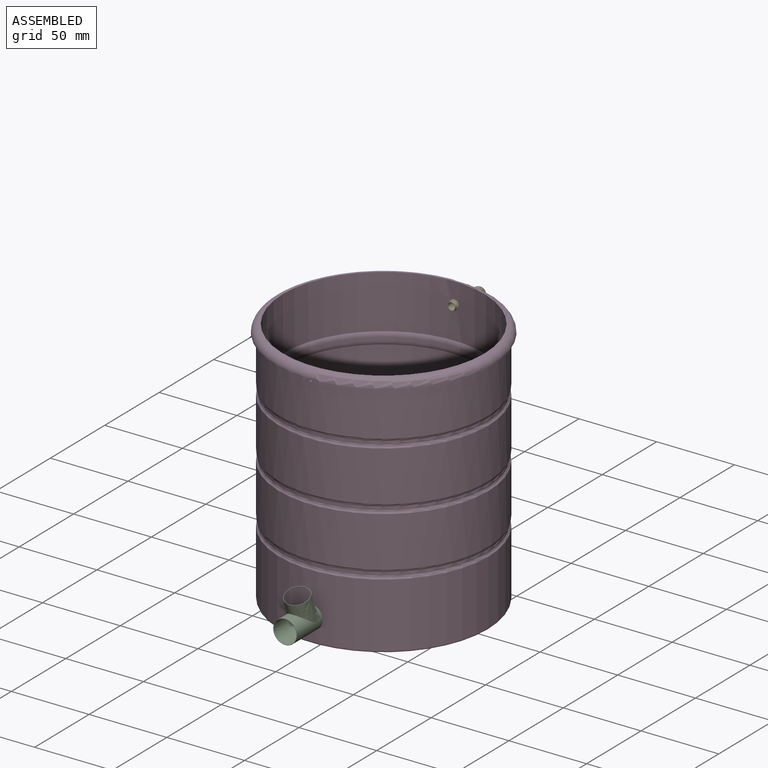
[diagram: assembled view]
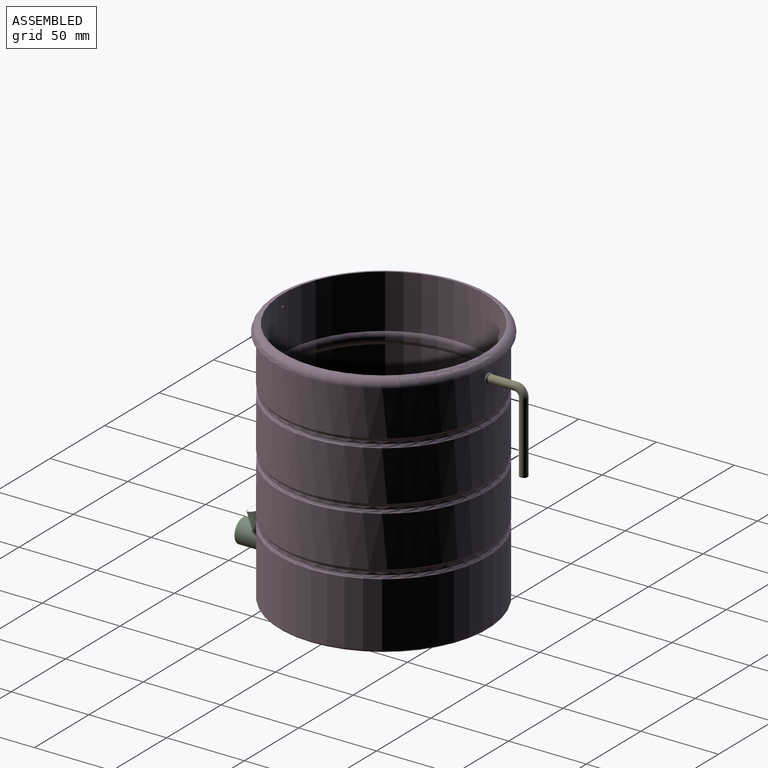
[diagram: assembled view, second angle]
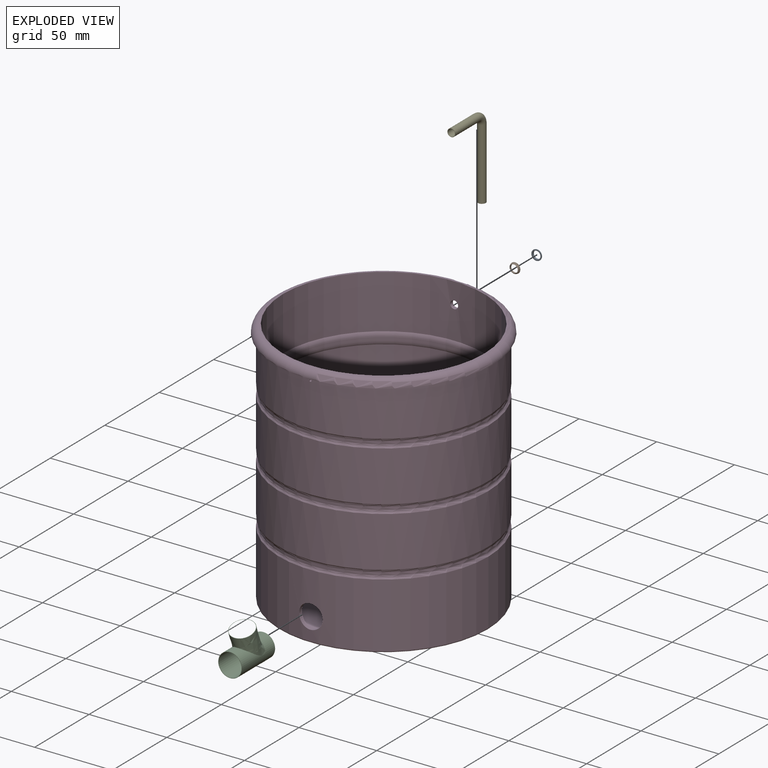
[diagram: exploded view]
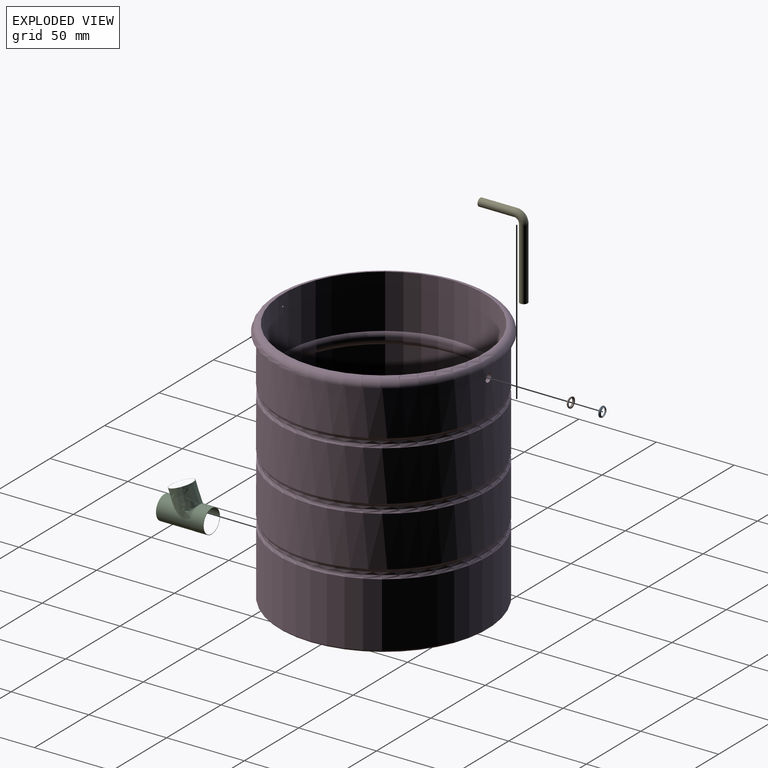
[diagram: exploded view, second angle]
ASSEMBLY  parts=5 mates=4
PART A: 6 faces, bbox 6.6x1.3x6.6 mm
  f0: cylinder r=2.54mm len=5.08mm, axis (0,1,0), area 20.3mm2, adj f2,f5
  f1: cylinder r=3.17mm len=6.35mm, axis (0,1,0), area 7.6mm2, adj f4,f5
  f2: plane 6.6x6.6mm, normal (0,1,0), area 14mm2, adj f0,f3
  f3: cylinder r=3.3mm len=6.6mm, axis (0,1,0), area 5.3mm2, adj f2,f4
  f4: plane 6.6x6.6mm, normal (0,-1,0), area 2.6mm2, adj f1,f3
  f5: cone r=2.54mm half-angle=45deg, axis (0,1,0), area 16.1mm2, adj f0,f1
PART B: same geometry as A
PART C: 12 faces, bbox 36.1x32.6x31.8 mm
  f0: bspline ~25.69x15.35mm, area 43.7mm2, adj f2,f4,f5
  f1: bspline ~25.69x15.35mm, area 43.7mm2, adj f2,f4,f5
  f2: bspline ~30.48x15.24mm, area 547.7mm2, adj f0,f1,f3,f4,f5
  f3: plane 15.24x15.24mm, normal (0.01,0,1), area 12mm2, adj f2
  f4: cylinder r=7.62mm len=15.24mm, axis (0.94,0,-0.35), area 197.8mm2, adj f0,f1,f2,f7,f8,f9
  f5: cylinder r=7.62mm len=25.68mm, axis (0.94,0,-0.35), area 786.7mm2, adj f0,f1,f2,f6,f7
  f6: plane 15.24x14.27mm, normal (-0.94,0,0.35), area 12mm2, adj f5,f11
  f7: bspline ~30.48x15.35mm, area 35mm2, adj f4,f5,f8
  f8: bspline ~15.24x9.85mm, area 182.9mm2, adj f4,f7,f9
  f9: plane 17.4x16.43mm, normal (0.94,0,-0.35), area 12mm2, adj f4,f8,f10
  f10: cylinder r=7.37mm len=14.73mm, axis (0.94,0,-0.35), area 193.1mm2, adj f9
  f11: cylinder r=7.37mm len=25.5mm, axis (0.94,0,-0.35), area 766.5mm2, adj f6
PART D: 35 faces, bbox 151.5x151.5x160 mm
  f0: cylinder r=67.31mm len=134.62mm, axis (0,0,-1), area 12822.4mm2, adj f13,f18,f33,f34
  f1: cylinder r=64.77mm len=129.54mm, axis (0,0,-1), area 14012.6mm2, adj f17,f30,f33,f34
  f2: cylinder r=67.31mm len=134.62mm, axis (0,0,-1), area 17316.7mm2, adj f6,f16,f32
  f3: cylinder r=64.77mm len=129.54mm, axis (0,0,-1), area 15747mm2, adj f19,f20,f32
  f4: plane 132.08x132.08mm, normal (0,0,-1), area 13701.4mm2, adj f16
  f5: torus R=68.92mm, axis (0,0,1), area 940.6mm2, adj f7,f8
  f6: torus R=68.92mm, axis (0,0,1), area 940.6mm2, adj f2,f7
  f7: cylinder r=66.38mm len=132.76mm, axis (0,0,1), area 748.7mm2, adj f5,f6
  f8: cylinder r=67.31mm len=134.62mm, axis (0,0,-1), area 13693.3mm2, adj f5,f10
  f9: torus R=68.92mm, axis (0,0,1), area 940.6mm2, adj f11,f12
  f10: torus R=68.92mm, axis (0,0,1), area 940.6mm2, adj f8,f11
  f11: cylinder r=66.38mm len=132.76mm, axis (0,0,1), area 748.7mm2, adj f9,f10
  f12: cylinder r=67.31mm len=134.62mm, axis (0,0,-1), area 13693.3mm2, adj f9,f14
  f13: torus R=68.92mm, axis (0,0,1), area 940.6mm2, adj f0,f15
  f14: torus R=68.92mm, axis (0,0,1), area 940.6mm2, adj f12,f15
  f15: cylinder r=66.38mm len=132.76mm, axis (0,0,1), area 748.7mm2, adj f13,f14
  f16: torus R=66.04mm, axis (0,0,1), area 837.9mm2, adj f2,f4
  f17: plane 129.8x129.8mm, normal (0,0,1), area 52.6mm2, adj f1,f31
  f18: plane 139.96x139.96mm, normal (0,0,-1), area 1151.2mm2, adj f0,f31
  f19: plane 129.54x129.54mm, normal (0,0,1), area 13179.5mm2, adj f3
  f20: torus R=68.92mm, axis (0,0,1), area 1257.9mm2, adj f3,f21
  f21: cylinder r=63.84mm len=127.68mm, axis (0,0,1), area 720mm2, adj f20,f22
  f22: torus R=68.92mm, axis (0,0,1), area 1257.9mm2, adj f21,f23
  f23: cylinder r=64.77mm len=129.54mm, axis (0,0,-1), area 12391.5mm2, adj f22,f24
  f24: torus R=68.92mm, axis (0,0,1), area 1257.9mm2, adj f23,f25
  f25: cylinder r=63.84mm len=127.68mm, axis (0,0,1), area 720mm2, adj f24,f26
  f26: torus R=68.92mm, axis (0,0,1), area 1257.9mm2, adj f25,f27
  f27: cylinder r=64.77mm len=129.54mm, axis (0,0,-1), area 12391.5mm2, adj f26,f28
  f28: torus R=68.92mm, axis (0,0,1), area 1257.9mm2, adj f27,f29
  f29: cylinder r=63.84mm len=127.68mm, axis (0,0,1), area 720mm2, adj f28,f30
  f30: torus R=68.92mm, axis (0,0,1), area 1257.9mm2, adj f1,f29
  f31: torus R=64.9mm, axis (0,0,1), area 3416mm2, adj f17,f18
  f32: cylinder r=7.62mm len=15.24mm, axis (0,1,0), area 122mm2, adj f2,f3
  f33: cylinder r=2.54mm len=5.08mm, axis (0,-1,0), area 40.5mm2, adj f0,f1
  f34: cylinder r=0.64mm len=2.54mm, axis (0,1,0), area 10.1mm2, adj f0,f1
PART E: 8 faces, bbox 31.1x5.1x54 mm
  f0: plane 5.08x5.08mm, normal (1,0,0), area 3.9mm2, adj f2,f5
  f1: plane 5.08x5.08mm, normal (0,0,1), area 3.9mm2, adj f4,f7
  f2: cylinder r=2.54mm len=22.86mm, axis (-1,0,0), area 364.8mm2, adj f0,f3
  f3: torus R=5.08mm, axis (0,1,0), area 127.3mm2, adj f2,f4
  f4: cylinder r=2.54mm len=45.72mm, axis (0,0,1), area 729.7mm2, adj f1,f3
  f5: cylinder r=2.29mm len=22.86mm, axis (-1,0,0), area 328.3mm2, adj f0,f6
  f6: torus R=5.08mm, axis (0,1,0), area 114.6mm2, adj f5,f7
  f7: cylinder r=2.29mm len=45.72mm, axis (0,0,1), area 656.7mm2, adj f1,f6
PLACE A rot(axis=(1,0,0),180deg) t=(-0.15,66.81,62.86)mm
PLACE B t=(-0.15,64.19,62.86)mm
PLACE C rot(axis=(0.18,-0.18,0.97),91.8deg) t=(-0.15,-75.45,-63.16)mm
PLACE D t=(-0.15,-0.52,-83.44)mm fixed
PLACE E rot(axis=(0.71,-0.71,0),180deg) t=(-0.15,89.59,48.85)mm
MATE fastened B.f3 <-> D.f33  axis (0,1,0) through (-0.15,64.19,62.86)mm
MATE fastened A.f3 <-> D.f33  axis (0,-1,0) through (-0.15,66.81,62.86)mm
MATE fastened E.f2 <-> B.f0  axis (0,1,0) through (-0.15,61.65,62.86)mm
MATE fastened D.f32 <-> C.f4  axis (0,1,0) through (-0.15,-66.33,-67.96)mm
